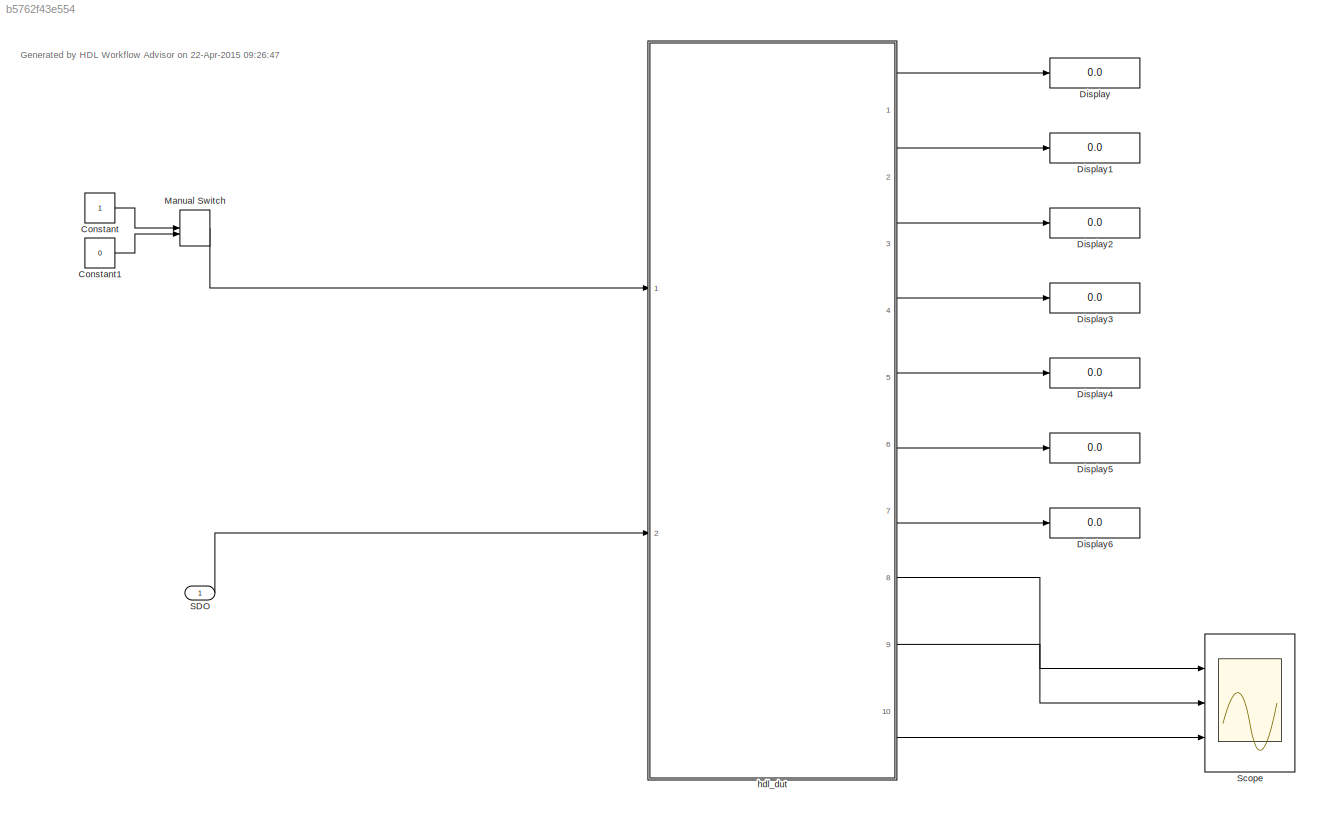
MODEL slx_b5762f43e554
KIND model
CONFIG AbsTol = auto
CONFIG FixedStep = auto
CONFIG MaxStep = auto
CONFIG MinStep = auto
CONFIG RelTol = 1e-3
CONFIG SampleTimeConstraint = Unconstrained
CONFIG Solver = ode45
CONFIG SolverMode = Auto
CONFIG SolverName = ode45
CONFIG StartTime = 0.0
CONFIG StopTime = 10.0
WORKSPACE source: MAT-file member
WORKSPACE MCOS: class17 (value not decoded)
BLOCK [Constant] Constant
  OutDataTypeStr = boolean
  SampleTime = -1
BLOCK [Constant] Constant1
  OutDataTypeStr = boolean
  SampleTime = -1
  Value = 0
BLOCK [Display] Display
  Decimation = 1
  Ports = [1]
BLOCK [Display] Display1
  Decimation = 1
  Ports = [1]
BLOCK [Display] Display2
  Decimation = 1
  Ports = [1]
BLOCK [Display] Display3
  Decimation = 1
  Ports = [1]
BLOCK [Display] Display4
  Decimation = 1
  Ports = [1]
BLOCK [Display] Display5
  Decimation = 1
  Ports = [1]
BLOCK [Display] Display6
  Decimation = 1
  Format = octal (Stored Integer)
  Ports = [1]
BLOCK [ManualSwitch] Manual Switch
BLOCK [Inport] SDO
  IconDisplay = Port number
BLOCK [Scope] Scope
  Floating = off
  LimitDataPoints = off
  NumInputPorts = 3
  Ports = [3]
  TimeRange = 3000
  YMax = 5~5~5
  YMin = -5~-5~-5
  ZoomMode = xonly
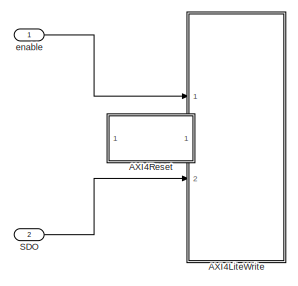
[diagram: hdl_dut - part 1/3, top left region]
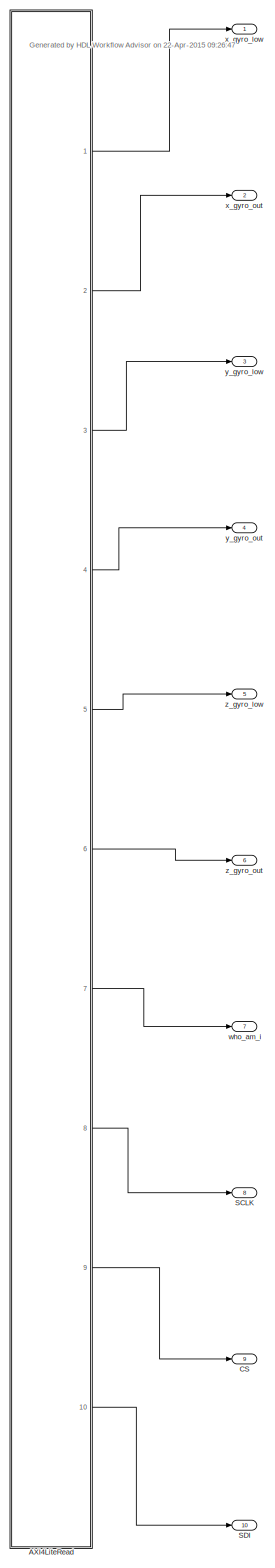
[diagram: hdl_dut - part 2/3, left side, full height]
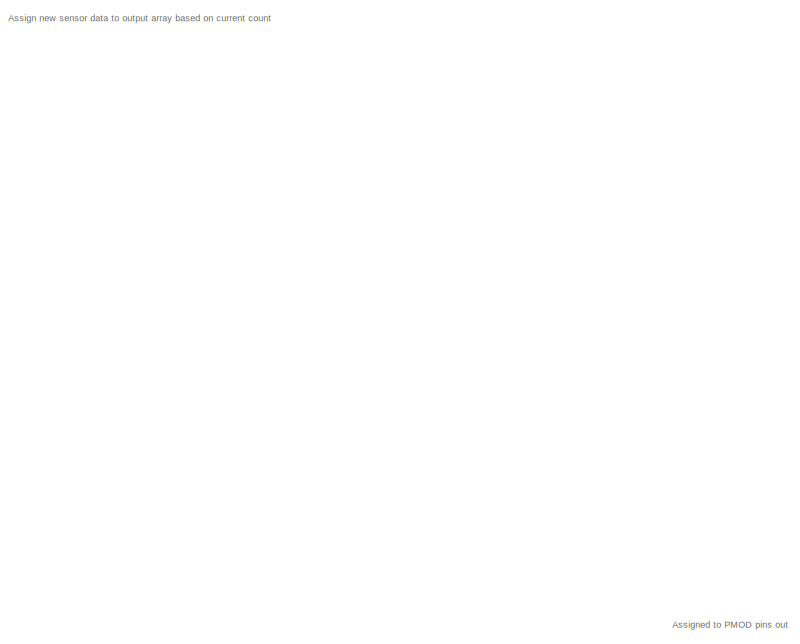
[diagram: hdl_dut - part 3/3, middle right region]
BLOCK [SubSystem] hdl_dut
  MinMaxOverflowLogging = MinMaxAndOverflow
  Ports = [2, 10]
  RequestExecContextInheritance = off
  TreatAsAtomicUnit = on
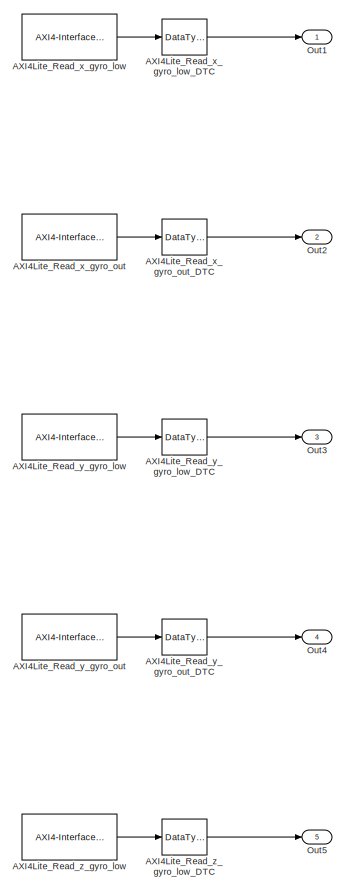
[diagram: hdl_dut/AXI4LiteRead - part 1/2, full width, top band]
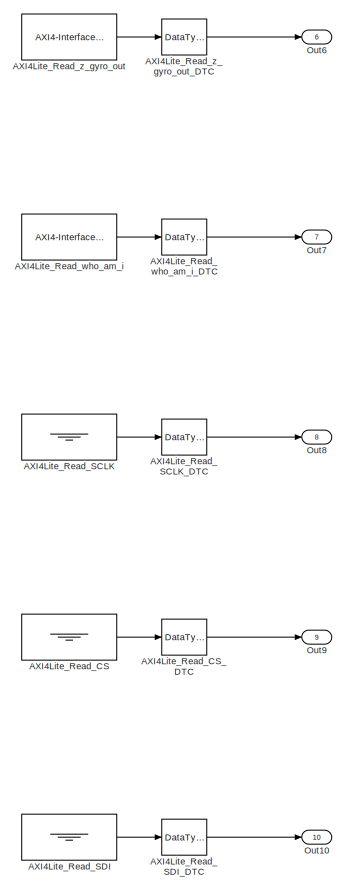
[diagram: hdl_dut/AXI4LiteRead - part 2/2, full width, bottom band]
BLOCK [SubSystem] hdl_dut/AXI4LiteRead
  Ports = [0, 10]
  Priority = 10
  RequestExecContextInheritance = off
BLOCK [Ground] hdl_dut/AXI4LiteRead/AXI4Lite_Read_CS
BLOCK [DataTypeConversion] hdl_dut/AXI4LiteRead/AXI4Lite_Read_CS_DTC
  ConvertRealWorld = Stored Integer (SI)
  OutDataTypeStr = fixdt('boolean')
  RndMeth = Floor
  SaturateOnIntegerOverflow = off
BLOCK [Ground] hdl_dut/AXI4LiteRead/AXI4Lite_Read_SCLK
BLOCK [DataTypeConversion] hdl_dut/AXI4LiteRead/AXI4Lite_Read_SCLK_DTC
  ConvertRealWorld = Stored Integer (SI)
  OutDataTypeStr = fixdt('boolean')
  RndMeth = Floor
  SaturateOnIntegerOverflow = off
BLOCK [Ground] hdl_dut/AXI4LiteRead/AXI4Lite_Read_SDI
BLOCK [DataTypeConversion] hdl_dut/AXI4LiteRead/AXI4Lite_Read_SDI_DTC
  ConvertRealWorld = Stored Integer (SI)
  OutDataTypeStr = fixdt('boolean')
  RndMeth = Floor
  SaturateOnIntegerOverflow = off
BLOCK [Reference] hdl_dut/AXI4LiteRead/AXI4Lite_Read_who_am_i  REF=axiinterfacelib/AXI4-Interface Read
  AXIInterfaceType = AXI4-Lite
  DataLength = 4096
  DataType = uint32
  DeviceName = /dev/mwipcore
  Ports = [0, 1]
  Priority = 8
  RegisterOffset = hex2dec('11C')
  SampleTime = -1
  SimulateUsing = Interpreted Execution
  SourceBlock = axiinterfacelib/AXI4-Interface Read
  SourceType = AXI4-Interface Read
  blockPlatform = ZYNQ
BLOCK [DataTypeConversion] hdl_dut/AXI4LiteRead/AXI4Lite_Read_who_am_i_DTC
  ConvertRealWorld = Stored Integer (SI)
  OutDataTypeStr = fixdt('int8')
  RndMeth = Floor
  SaturateOnIntegerOverflow = off
BLOCK [Reference] hdl_dut/AXI4LiteRead/AXI4Lite_Read_x_gyro_low  REF=axiinterfacelib/AXI4-Interface Read
  AXIInterfaceType = AXI4-Lite
  DataLength = 4096
  DataType = uint32
  DeviceName = /dev/mwipcore
  Ports = [0, 1]
  Priority = 2
  RegisterOffset = hex2dec('104')
  SampleTime = -1
  SimulateUsing = Interpreted Execution
  SourceBlock = axiinterfacelib/AXI4-Interface Read
  SourceType = AXI4-Interface Read
  blockPlatform = ZYNQ
BLOCK [DataTypeConversion] hdl_dut/AXI4LiteRead/AXI4Lite_Read_x_gyro_low_DTC
  ConvertRealWorld = Stored Integer (SI)
  OutDataTypeStr = fixdt('int8')
  RndMeth = Floor
  SaturateOnIntegerOverflow = off
BLOCK [Reference] hdl_dut/AXI4LiteRead/AXI4Lite_Read_x_gyro_out  REF=axiinterfacelib/AXI4-Interface Read
  AXIInterfaceType = AXI4-Lite
  DataLength = 4096
  DataType = uint32
  DeviceName = /dev/mwipcore
  Ports = [0, 1]
  Priority = 3
  RegisterOffset = hex2dec('108')
  SampleTime = -1
  SimulateUsing = Interpreted Execution
  SourceBlock = axiinterfacelib/AXI4-Interface Read
  SourceType = AXI4-Interface Read
  blockPlatform = ZYNQ
BLOCK [DataTypeConversion] hdl_dut/AXI4LiteRead/AXI4Lite_Read_x_gyro_out_DTC
  ConvertRealWorld = Stored Integer (SI)
  OutDataTypeStr = fixdt('int8')
  RndMeth = Floor
  SaturateOnIntegerOverflow = off
BLOCK [Reference] hdl_dut/AXI4LiteRead/AXI4Lite_Read_y_gyro_low  REF=axiinterfacelib/AXI4-Interface Read
  AXIInterfaceType = AXI4-Lite
  DataLength = 4096
  DataType = uint32
  DeviceName = /dev/mwipcore
  Ports = [0, 1]
  Priority = 4
  RegisterOffset = hex2dec('10C')
  SampleTime = -1
  SimulateUsing = Interpreted Execution
  SourceBlock = axiinterfacelib/AXI4-Interface Read
  SourceType = AXI4-Interface Read
  blockPlatform = ZYNQ
BLOCK [DataTypeConversion] hdl_dut/AXI4LiteRead/AXI4Lite_Read_y_gyro_low_DTC
  ConvertRealWorld = Stored Integer (SI)
  OutDataTypeStr = fixdt('int8')
  RndMeth = Floor
  SaturateOnIntegerOverflow = off
BLOCK [Reference] hdl_dut/AXI4LiteRead/AXI4Lite_Read_y_gyro_out  REF=axiinterfacelib/AXI4-Interface Read
  AXIInterfaceType = AXI4-Lite
  DataLength = 4096
  DataType = uint32
  DeviceName = /dev/mwipcore
  Ports = [0, 1]
  Priority = 5
  RegisterOffset = hex2dec('110')
  SampleTime = -1
  SimulateUsing = Interpreted Execution
  SourceBlock = axiinterfacelib/AXI4-Interface Read
  SourceType = AXI4-Interface Read
  blockPlatform = ZYNQ
BLOCK [DataTypeConversion] hdl_dut/AXI4LiteRead/AXI4Lite_Read_y_gyro_out_DTC
  ConvertRealWorld = Stored Integer (SI)
  OutDataTypeStr = fixdt('int8')
  RndMeth = Floor
  SaturateOnIntegerOverflow = off
BLOCK [Reference] hdl_dut/AXI4LiteRead/AXI4Lite_Read_z_gyro_low  REF=axiinterfacelib/AXI4-Interface Read
  AXIInterfaceType = AXI4-Lite
  DataLength = 4096
  DataType = uint32
  DeviceName = /dev/mwipcore
  Ports = [0, 1]
  Priority = 6
  RegisterOffset = hex2dec('114')
  SampleTime = -1
  SimulateUsing = Interpreted Execution
  SourceBlock = axiinterfacelib/AXI4-Interface Read
  SourceType = AXI4-Interface Read
  blockPlatform = ZYNQ
BLOCK [DataTypeConversion] hdl_dut/AXI4LiteRead/AXI4Lite_Read_z_gyro_low_DTC
  ConvertRealWorld = Stored Integer (SI)
  OutDataTypeStr = fixdt('int8')
  RndMeth = Floor
  SaturateOnIntegerOverflow = off
BLOCK [Reference] hdl_dut/AXI4LiteRead/AXI4Lite_Read_z_gyro_out  REF=axiinterfacelib/AXI4-Interface Read
  AXIInterfaceType = AXI4-Lite
  DataLength = 4096
  DataType = uint32
  DeviceName = /dev/mwipcore
  Ports = [0, 1]
  Priority = 7
  RegisterOffset = hex2dec('118')
  SampleTime = -1
  SimulateUsing = Interpreted Execution
  SourceBlock = axiinterfacelib/AXI4-Interface Read
  SourceType = AXI4-Interface Read
  blockPlatform = ZYNQ
BLOCK [DataTypeConversion] hdl_dut/AXI4LiteRead/AXI4Lite_Read_z_gyro_out_DTC
  ConvertRealWorld = Stored Integer (SI)
  OutDataTypeStr = fixdt('int8')
  RndMeth = Floor
  SaturateOnIntegerOverflow = off
BLOCK [Outport] hdl_dut/AXI4LiteRead/Out1
  IconDisplay = Port number
BLOCK [Outport] hdl_dut/AXI4LiteRead/Out10
  IconDisplay = Port number
  Port = 10
BLOCK [Outport] hdl_dut/AXI4LiteRead/Out2
  IconDisplay = Port number
  Port = 2
BLOCK [Outport] hdl_dut/AXI4LiteRead/Out3
  IconDisplay = Port number
  Port = 3
BLOCK [Outport] hdl_dut/AXI4LiteRead/Out4
  IconDisplay = Port number
  Port = 4
BLOCK [Outport] hdl_dut/AXI4LiteRead/Out5
  IconDisplay = Port number
  Port = 5
BLOCK [Outport] hdl_dut/AXI4LiteRead/Out6
  IconDisplay = Port number
  Port = 6
BLOCK [Outport] hdl_dut/AXI4LiteRead/Out7
  IconDisplay = Port number
  Port = 7
BLOCK [Outport] hdl_dut/AXI4LiteRead/Out8
  IconDisplay = Port number
  Port = 8
BLOCK [Outport] hdl_dut/AXI4LiteRead/Out9
  IconDisplay = Port number
  Port = 9
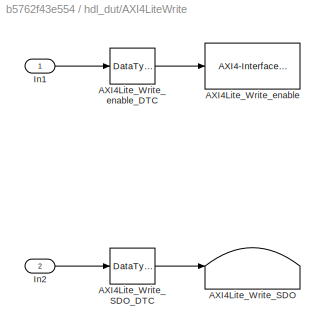
BLOCK [SubSystem] hdl_dut/AXI4LiteWrite
  Ports = [2]
  Priority = 1
  RequestExecContextInheritance = off
BLOCK [Terminator] hdl_dut/AXI4LiteWrite/AXI4Lite_Write_SDO
BLOCK [DataTypeConversion] hdl_dut/AXI4LiteWrite/AXI4Lite_Write_SDO_DTC
  ConvertRealWorld = Stored Integer (SI)
  OutDataTypeStr = uint32
  RndMeth = Floor
  SaturateOnIntegerOverflow = off
BLOCK [Reference] hdl_dut/AXI4LiteWrite/AXI4Lite_Write_enable  REF=axiinterfacelib/AXI4-Interface Write
  AXIInterfaceType = AXI4-Lite
  DeviceName = /dev/mwipcore
  Ports = [1]
  Priority = 1
  RegisterOffset = hex2dec('100')
  SimulateUsing = Interpreted execution
  SourceBlock = axiinterfacelib/AXI4-Interface Write
  SourceType = AXI4-Interface Write
  blockPlatform = ZYNQ
BLOCK [DataTypeConversion] hdl_dut/AXI4LiteWrite/AXI4Lite_Write_enable_DTC
  ConvertRealWorld = Stored Integer (SI)
  OutDataTypeStr = uint32
  RndMeth = Floor
  SaturateOnIntegerOverflow = off
BLOCK [Inport] hdl_dut/AXI4LiteWrite/In1
  IconDisplay = Port number
BLOCK [Inport] hdl_dut/AXI4LiteWrite/In2
  IconDisplay = Port number
  Port = 2
BLOCK [SubSystem] hdl_dut/AXI4Reset
  CopyFcn = cccopyfcn(gcb)
  OpenFcn = ccopenfcn('System Initialize Function')
  Ports = []
  RequestExecContextInheritance = off
BLOCK [Outport] hdl_dut/CS
  IconDisplay = Port number
  Port = 9
BLOCK [Outport] hdl_dut/SCLK
  IconDisplay = Port number
  Port = 8
BLOCK [Outport] hdl_dut/SDI
  IconDisplay = Port number
  Port = 10
BLOCK [Inport] hdl_dut/SDO
  IconDisplay = Port number
  Port = 2
BLOCK [Inport] hdl_dut/enable
  IconDisplay = Port number
BLOCK [Outport] hdl_dut/who_am_i
  IconDisplay = Port number
  Port = 7
BLOCK [Outport] hdl_dut/x_gyro_low
  IconDisplay = Port number
BLOCK [Outport] hdl_dut/x_gyro_out
  IconDisplay = Port number
  Port = 2
BLOCK [Outport] hdl_dut/y_gyro_low
  IconDisplay = Port number
  Port = 3
BLOCK [Outport] hdl_dut/y_gyro_out
  IconDisplay = Port number
  Port = 4
BLOCK [Outport] hdl_dut/z_gyro_low
  IconDisplay = Port number
  Port = 5
BLOCK [Outport] hdl_dut/z_gyro_out
  IconDisplay = Port number
  Port = 6
ANNOTATION (root): Generated by HDL Workflow Advisor on 22-Apr-2015 09:26:47
ANNOTATION hdl_dut: Assign new sensor data to output array based on current count
ANNOTATION hdl_dut: Assigned to PMOD pins out
ANNOTATION hdl_dut: Generated by HDL Workflow Advisor on 22-Apr-2015 09:26:47
LINE Constant1:1 -> Manual Switch:2
LINE Constant:1 -> Manual Switch:1
LINE Manual Switch:1 -> hdl_dut:1
LINE SDO:1 -> hdl_dut:2
LINE hdl_dut/AXI4LiteRead/AXI4Lite_Read_CS:1 -> hdl_dut/AXI4LiteRead/AXI4Lite_Read_CS_DTC:1
LINE hdl_dut/AXI4LiteRead/AXI4Lite_Read_CS_DTC:1 -> hdl_dut/AXI4LiteRead/Out9:1
LINE hdl_dut/AXI4LiteRead/AXI4Lite_Read_SCLK:1 -> hdl_dut/AXI4LiteRead/AXI4Lite_Read_SCLK_DTC:1
LINE hdl_dut/AXI4LiteRead/AXI4Lite_Read_SCLK_DTC:1 -> hdl_dut/AXI4LiteRead/Out8:1
LINE hdl_dut/AXI4LiteRead/AXI4Lite_Read_SDI:1 -> hdl_dut/AXI4LiteRead/AXI4Lite_Read_SDI_DTC:1
LINE hdl_dut/AXI4LiteRead/AXI4Lite_Read_SDI_DTC:1 -> hdl_dut/AXI4LiteRead/Out10:1
LINE hdl_dut/AXI4LiteRead/AXI4Lite_Read_who_am_i:1 -> hdl_dut/AXI4LiteRead/AXI4Lite_Read_who_am_i_DTC:1
LINE hdl_dut/AXI4LiteRead/AXI4Lite_Read_who_am_i_DTC:1 -> hdl_dut/AXI4LiteRead/Out7:1
LINE hdl_dut/AXI4LiteRead/AXI4Lite_Read_x_gyro_low:1 -> hdl_dut/AXI4LiteRead/AXI4Lite_Read_x_gyro_low_DTC:1
LINE hdl_dut/AXI4LiteRead/AXI4Lite_Read_x_gyro_low_DTC:1 -> hdl_dut/AXI4LiteRead/Out1:1
LINE hdl_dut/AXI4LiteRead/AXI4Lite_Read_x_gyro_out:1 -> hdl_dut/AXI4LiteRead/AXI4Lite_Read_x_gyro_out_DTC:1
LINE hdl_dut/AXI4LiteRead/AXI4Lite_Read_x_gyro_out_DTC:1 -> hdl_dut/AXI4LiteRead/Out2:1
LINE hdl_dut/AXI4LiteRead/AXI4Lite_Read_y_gyro_low:1 -> hdl_dut/AXI4LiteRead/AXI4Lite_Read_y_gyro_low_DTC:1
LINE hdl_dut/AXI4LiteRead/AXI4Lite_Read_y_gyro_low_DTC:1 -> hdl_dut/AXI4LiteRead/Out3:1
LINE hdl_dut/AXI4LiteRead/AXI4Lite_Read_y_gyro_out:1 -> hdl_dut/AXI4LiteRead/AXI4Lite_Read_y_gyro_out_DTC:1
LINE hdl_dut/AXI4LiteRead/AXI4Lite_Read_y_gyro_out_DTC:1 -> hdl_dut/AXI4LiteRead/Out4:1
LINE hdl_dut/AXI4LiteRead/AXI4Lite_Read_z_gyro_low:1 -> hdl_dut/AXI4LiteRead/AXI4Lite_Read_z_gyro_low_DTC:1
LINE hdl_dut/AXI4LiteRead/AXI4Lite_Read_z_gyro_low_DTC:1 -> hdl_dut/AXI4LiteRead/Out5:1
LINE hdl_dut/AXI4LiteRead/AXI4Lite_Read_z_gyro_out:1 -> hdl_dut/AXI4LiteRead/AXI4Lite_Read_z_gyro_out_DTC:1
LINE hdl_dut/AXI4LiteRead/AXI4Lite_Read_z_gyro_out_DTC:1 -> hdl_dut/AXI4LiteRead/Out6:1
LINE hdl_dut/AXI4LiteRead:1 -> hdl_dut/x_gyro_low:1
LINE hdl_dut/AXI4LiteRead:10 -> hdl_dut/SDI:1
LINE hdl_dut/AXI4LiteRead:2 -> hdl_dut/x_gyro_out:1
LINE hdl_dut/AXI4LiteRead:3 -> hdl_dut/y_gyro_low:1
LINE hdl_dut/AXI4LiteRead:4 -> hdl_dut/y_gyro_out:1
LINE hdl_dut/AXI4LiteRead:5 -> hdl_dut/z_gyro_low:1
LINE hdl_dut/AXI4LiteRead:6 -> hdl_dut/z_gyro_out:1
LINE hdl_dut/AXI4LiteRead:7 -> hdl_dut/who_am_i:1
LINE hdl_dut/AXI4LiteRead:8 -> hdl_dut/SCLK:1
LINE hdl_dut/AXI4LiteRead:9 -> hdl_dut/CS:1
LINE hdl_dut/AXI4LiteWrite/AXI4Lite_Write_SDO_DTC:1 -> hdl_dut/AXI4LiteWrite/AXI4Lite_Write_SDO:1
LINE hdl_dut/AXI4LiteWrite/AXI4Lite_Write_enable_DTC:1 -> hdl_dut/AXI4LiteWrite/AXI4Lite_Write_enable:1
LINE hdl_dut/AXI4LiteWrite/In1:1 -> hdl_dut/AXI4LiteWrite/AXI4Lite_Write_enable_DTC:1
LINE hdl_dut/AXI4LiteWrite/In2:1 -> hdl_dut/AXI4LiteWrite/AXI4Lite_Write_SDO_DTC:1
LINE hdl_dut/SDO:1 -> hdl_dut/AXI4LiteWrite:2
LINE hdl_dut/enable:1 -> hdl_dut/AXI4LiteWrite:1
LINE hdl_dut:1 -> Display:1
LINE hdl_dut:10 -> Scope:3
LINE hdl_dut:2 -> Display1:1
LINE hdl_dut:3 -> Display2:1
LINE hdl_dut:4 -> Display3:1
LINE hdl_dut:5 -> Display4:1
LINE hdl_dut:6 -> Display5:1
LINE hdl_dut:7 -> Display6:1
LINE hdl_dut:8 -> Scope:1
LINE hdl_dut:9 -> Scope:2
